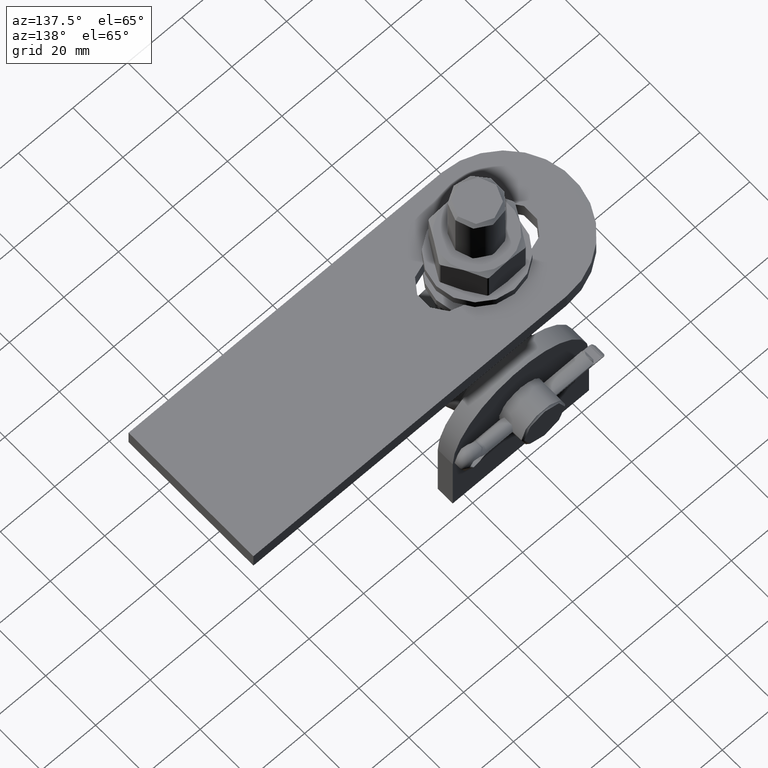
[diagram: clean part render]
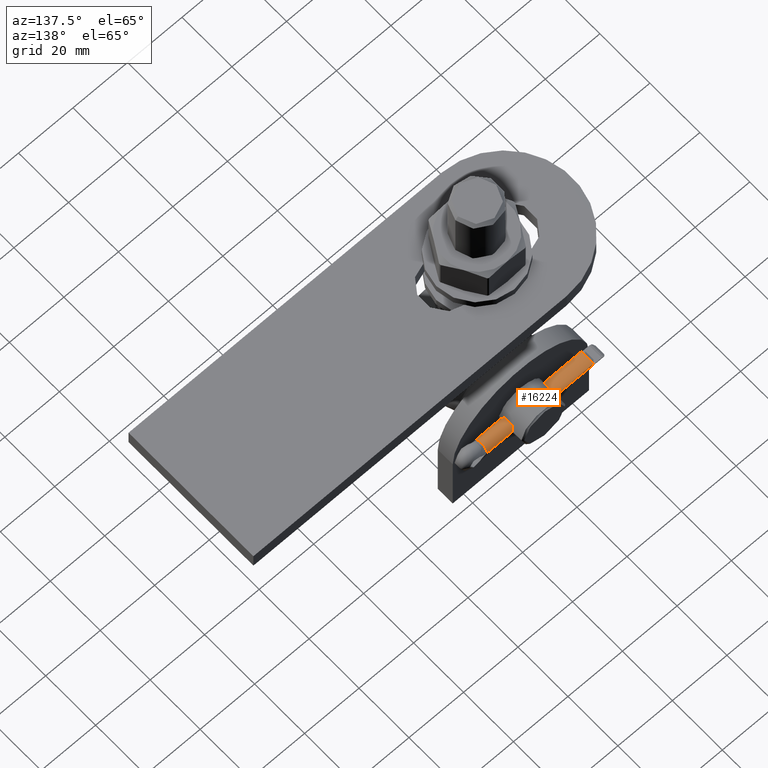
[diagram: same view with one face highlighted and labeled with its STEP entity id]
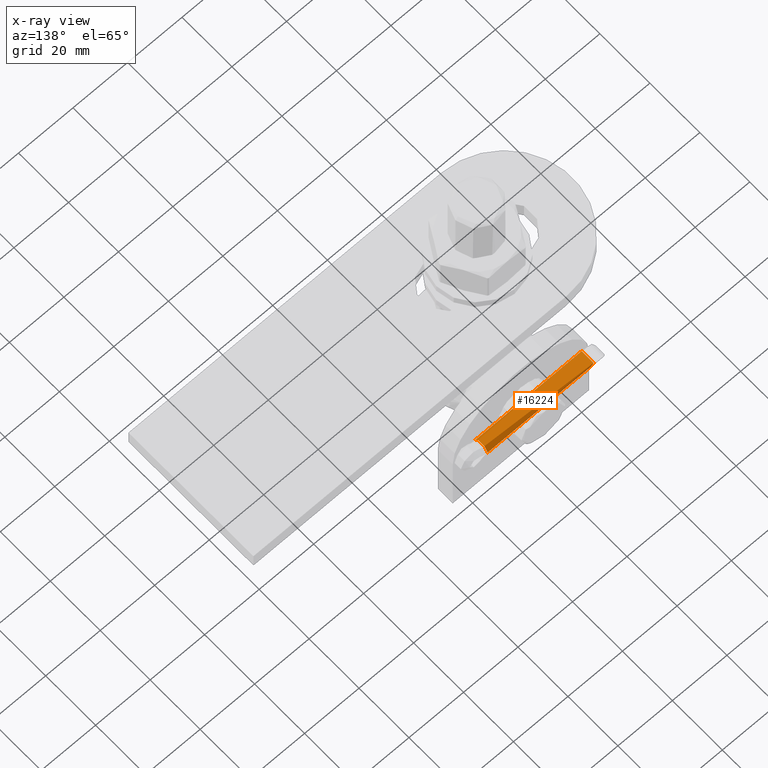
[diagram: x-ray of the same camera — body ghosted, the highlighted face saturated]
A machine part, auxiliary view. The second image highlights one B-rep face of the part: STEP entity #16224.
The next image is the same camera in x-ray: the body ghosted, the highlighted face saturated — about 0% of this face is hidden behind the body in this view.
In plain terms, the highlighted cylindrical surface (edge-blend (fillet) strip) has radius 2.5 mm, axis along (-1, 0, -0).
Its self-contained STEP definition (entity closure, byte-faithful):
#180 = CARTESIAN_POINT ( 'NONE',  ( 2.492941570271943075, -2.290164269921980633, -1.045164269921984079 ) ) ;
#370 = EDGE_LOOP ( 'NONE', ( #2437, #17826, #12585, #15693, #9889, #28683, #18257, #14411 ) ) ;
#438 = EDGE_CURVE ( 'NONE', #21193, #15103, #21146, .T. ) ;
#460 = CARTESIAN_POINT ( 'NONE',  ( 2.499979999919999418, -2.490000000000000213, -1.527162524337541294 ) ) ;
#1472 = CARTESIAN_POINT ( 'NONE',  ( -2.496786850888323084, -2.363718586561571300, -1.155447900356257218 ) ) ;
#1490 = VECTOR ( 'NONE', #27249, 1000.000000000000000 ) ;
#2437 = ORIENTED_EDGE ( 'NONE', *, *, #20402, .T. ) ;
#2446 = CARTESIAN_POINT ( 'NONE',  ( 2.496777668008723250, -2.363539239085528987, -1.155148314501130535 ) ) ;
#2490 = VERTEX_POINT ( 'NONE', #17426 ) ;
#3128 = CYLINDRICAL_SURFACE ( 'NONE', #14671, 2.500000000000000000 ) ;
#3613 = CARTESIAN_POINT ( 'NONE',  ( -2.481583304665959222, -2.197106781186545010, -0.9521067811865568942 ) ) ;
#3807 = CARTESIAN_POINT ( 'NONE',  ( -2.500244264023082419, -2.464002463455371661, -1.397520589763428855 ) ) ;
#4205 = CARTESIAN_POINT ( 'NONE',  ( -2.385674596319955487, -1.752633476483179686, -0.5076334764831897939 ) ) ;
#5172 = CARTESIAN_POINT ( 'NONE',  ( -2.499979999919999418, -2.490000000000000213, -39.48984831638268389 ) ) ;
#5251 = CARTESIAN_POINT ( 'NONE',  ( 2.431110771635005552, -1.897670651406383691, -0.6526706514063943532 ) ) ;
#6200 = VERTEX_POINT ( 'NONE', #23405 ) ;
#6702 = CARTESIAN_POINT ( 'NONE',  ( 2.385674596319955487, -1.752633476483181463, -0.5076334764831914592 ) ) ;
#7167 = CARTESIAN_POINT ( 'NONE',  ( 2.481583304665959666, -2.197106781186545899, -0.9521067811865574493 ) ) ;
#7472 = LINE ( 'NONE', #5172, #1490 ) ;
#7701 = EDGE_CURVE ( 'NONE', #2490, #24929, #14362, .T. ) ;
#7917 = CARTESIAN_POINT ( 'NONE',  ( 2.463168900275745088, -2.046238832808113806, -0.8012388328081250233 ) ) ;
#8521 = B_SPLINE_CURVE_WITH_KNOTS ( 'NONE', 3,
 ( #7167, #180, #2446, #22740, #460, #9213 ),
 .UNSPECIFIED., .F., .F.,
 ( 4, 2, 4 ),
 ( 1.748223473168675632E-18, 0.0003905280839846531201, 0.0007810561679693045056 ),
 .UNSPECIFIED. ) ;
#8840 = CARTESIAN_POINT ( 'NONE',  ( 1.493012529392597099, 1.096840174204273710, -2.217317666895640471 ) ) ;
#9210 = CARTESIAN_POINT ( 'NONE',  ( 2.499979999919999418, -2.490000000000000213, -39.48984831638268389 ) ) ;
#9213 = CARTESIAN_POINT ( 'NONE',  ( 2.499979999919999418, -2.490000000000000213, -1.659213562373099027 ) ) ;
#9889 = ORIENTED_EDGE ( 'NONE', *, *, #14723, .T. ) ;
#10018 = VECTOR ( 'NONE', #18729, 1000.000000000000000 ) ;
#10070 = CARTESIAN_POINT ( 'NONE',  ( 0.000000000000000000, -2.500000000000000000, -39.48984831638268389 ) ) ;
#10997 = AXIS2_PLACEMENT_3D ( 'NONE', #17892, #24726, #11371 ) ;
#11055 = CARTESIAN_POINT ( 'NONE',  ( -2.481583304665959222, -2.197106781186545010, -0.9521067811865568942 ) ) ;
#11371 = DIRECTION ( 'NONE',  ( 1.000000000000000000, 0.000000000000000000, 0.000000000000000000 ) ) ;
#11591 = CARTESIAN_POINT ( 'NONE',  ( -2.499979999919999418, -2.490000000000000213, -1.659213562373099027 ) ) ;
#12585 = ORIENTED_EDGE ( 'NONE', *, *, #21856, .F. ) ;
#12699 = DIRECTION ( 'NONE',  ( -0.000000000000000000, -0.000000000000000000, 1.000000000000000000 ) ) ;
#13138 = VERTEX_POINT ( 'NONE', #9210 ) ;
#13543 = CARTESIAN_POINT ( 'NONE',  ( -2.385674596319955487, -1.752633476483179686, -0.5076334764831897939 ) ) ;
#14102 = CARTESIAN_POINT ( 'NONE',  ( 2.481583304665959666, -2.197106781186545899, -0.9521067811865574493 ) ) ;
#14168 = EDGE_CURVE ( 'NONE', #15103, #2490, #20302, .T. ) ;
#14362 =( BOUNDED_CURVE ( )  B_SPLINE_CURVE ( 3, ( #4205, #24247, #8840, #6702 ),
 .UNSPECIFIED., .F., .F. ) 
 B_SPLINE_CURVE_WITH_KNOTS ( ( 4, 4 ),
 ( 1.874384918871357941, 4.408800388308229401 ),
 .UNSPECIFIED. ) 
 CURVE ( )  GEOMETRIC_REPRESENTATION_ITEM ( )  RATIONAL_B_SPLINE_CURVE ( ( 1.000000000000000000, 0.5326310729378187503, 0.5326310729378187503, 1.000000000000000000 ) ) 
 REPRESENTATION_ITEM ( '' )  );
#14411 = ORIENTED_EDGE ( 'NONE', *, *, #7701, .T. ) ;
#14671 = AXIS2_PLACEMENT_3D ( 'NONE', #10070, #12699, #21289 ) ;
#14723 = EDGE_CURVE ( 'NONE', #27117, #21193, #7472, .T. ) ;
#15103 = VERTEX_POINT ( 'NONE', #11055 ) ;
#15693 = ORIENTED_EDGE ( 'NONE', *, *, #18407, .T. ) ;
#16224 = ADVANCED_FACE ( 'NONE', ( #16782 ), #3128, .T. ) ;
#16526 =( BOUNDED_CURVE ( )  B_SPLINE_CURVE ( 3, ( #27796, #5251, #7917, #27606 ),
 .UNSPECIFIED., .F., .F. ) 
 B_SPLINE_CURVE_WITH_KNOTS ( ( 4, 4 ),
 ( 1.267207734718436507, 1.449340650918130580 ),
 .UNSPECIFIED. ) 
 CURVE ( )  GEOMETRIC_REPRESENTATION_ITEM ( )  RATIONAL_B_SPLINE_CURVE ( ( 1.000000000000000000, 0.9972375433056852589, 0.9972375433056852589, 1.000000000000000000 ) ) 
 REPRESENTATION_ITEM ( '' )  );
#16782 = FACE_OUTER_BOUND ( 'NONE', #370, .T. ) ;
#17029 = CARTESIAN_POINT ( 'NONE',  ( -2.499979999919999418, -2.490000000000000213, -1.659213562373099027 ) ) ;
#17329 = EDGE_CURVE ( 'NONE', #24120, #6200, #8521, .T. ) ;
#17426 = CARTESIAN_POINT ( 'NONE',  ( -2.385674596319955487, -1.752633476483179686, -0.5076334764831897939 ) ) ;
#17826 = ORIENTED_EDGE ( 'NONE', *, *, #17329, .T. ) ;
#17892 = CARTESIAN_POINT ( 'NONE',  ( 0.000000000000000000, -2.500000000000000000, -39.48984831638268389 ) ) ;
#18229 = CARTESIAN_POINT ( 'NONE',  ( -2.499979999919999418, -2.490000000000000213, -39.48984831638268389 ) ) ;
#18257 = ORIENTED_EDGE ( 'NONE', *, *, #14168, .T. ) ;
#18407 = EDGE_CURVE ( 'NONE', #13138, #27117, #23352, .T. ) ;
#18729 = DIRECTION ( 'NONE',  ( -0.000000000000000000, -0.000000000000000000, 1.000000000000000000 ) ) ;
#19103 = LINE ( 'NONE', #27519, #10018 ) ;
#19972 = CARTESIAN_POINT ( 'NONE',  ( -2.481583304665959222, -2.197106781186545010, -0.9521067811865568942 ) ) ;
#20302 =( BOUNDED_CURVE ( )  B_SPLINE_CURVE ( 3, ( #19972, #22514, #26909, #13543 ),
 .UNSPECIFIED., .F., .F. ) 
 B_SPLINE_CURVE_WITH_KNOTS ( ( 4, 4 ),
 ( 4.833844656261455874, 5.015977572461149947 ),
 .UNSPECIFIED. ) 
 CURVE ( )  GEOMETRIC_REPRESENTATION_ITEM ( )  RATIONAL_B_SPLINE_CURVE ( ( 1.000000000000000000, 0.9972375433056852589, 0.9972375433056852589, 1.000000000000000000 ) ) 
 REPRESENTATION_ITEM ( '' )  );
#20402 = EDGE_CURVE ( 'NONE', #24929, #24120, #16526, .T. ) ;
#21146 = B_SPLINE_CURVE_WITH_KNOTS ( 'NONE', 3,
 ( #17029, #21522, #3807, #1472, #26192, #3613 ),
 .UNSPECIFIED., .F., .F.,
 ( 4, 2, 4 ),
 ( 0.000000000000000000, 0.0003906063436695467531, 0.0007812126873390935061 ),
 .UNSPECIFIED. ) ;
#21193 = VERTEX_POINT ( 'NONE', #11591 ) ;
#21289 = DIRECTION ( 'NONE',  ( 1.000000000000000000, 0.000000000000000000, 0.000000000000000000 ) ) ;
#21522 = CARTESIAN_POINT ( 'NONE',  ( -2.499979999919999862, -2.490000000000000657, -1.527142508146417388 ) ) ;
#21856 = EDGE_CURVE ( 'NONE', #13138, #6200, #19103, .T. ) ;
#22514 = CARTESIAN_POINT ( 'NONE',  ( -2.463168900275745088, -2.046238832808114250, -0.8012388328081251343 ) ) ;
#22740 = CARTESIAN_POINT ( 'NONE',  ( 2.500243165487229469, -2.463883851661200275, -1.397101334867594025 ) ) ;
#23352 = CIRCLE ( 'NONE', #10997, 2.500000000000000000 ) ;
#23405 = CARTESIAN_POINT ( 'NONE',  ( 2.499979999919999418, -2.490000000000000213, -1.659213562373099027 ) ) ;
#24120 = VERTEX_POINT ( 'NONE', #14102 ) ;
#24247 = CARTESIAN_POINT ( 'NONE',  ( -1.493012529392594212, 1.096840174204275042, -2.217317666895641803 ) ) ;
#24726 = DIRECTION ( 'NONE',  ( 0.000000000000000000, 0.000000000000000000, 1.000000000000000000 ) ) ;
#24929 = VERTEX_POINT ( 'NONE', #27418 ) ;
#26192 = CARTESIAN_POINT ( 'NONE',  ( -2.492942233587890133, -2.290169704423416164, -1.045169704423370538 ) ) ;
#26909 = CARTESIAN_POINT ( 'NONE',  ( -2.431110771635005552, -1.897670651406383691, -0.6526706514063943532 ) ) ;
#27117 = VERTEX_POINT ( 'NONE', #18229 ) ;
#27249 = DIRECTION ( 'NONE',  ( -0.000000000000000000, -0.000000000000000000, 1.000000000000000000 ) ) ;
#27418 = CARTESIAN_POINT ( 'NONE',  ( 2.385674596319955487, -1.752633476483181463, -0.5076334764831914592 ) ) ;
#27519 = CARTESIAN_POINT ( 'NONE',  ( 2.499979999919999418, -2.490000000000000213, -39.48984831638268389 ) ) ;
#27606 = CARTESIAN_POINT ( 'NONE',  ( 2.481583304665959666, -2.197106781186545899, -0.9521067811865574493 ) ) ;
#27796 = CARTESIAN_POINT ( 'NONE',  ( 2.385674596319955487, -1.752633476483181463, -0.5076334764831914592 ) ) ;
#28683 = ORIENTED_EDGE ( 'NONE', *, *, #438, .T. ) ;